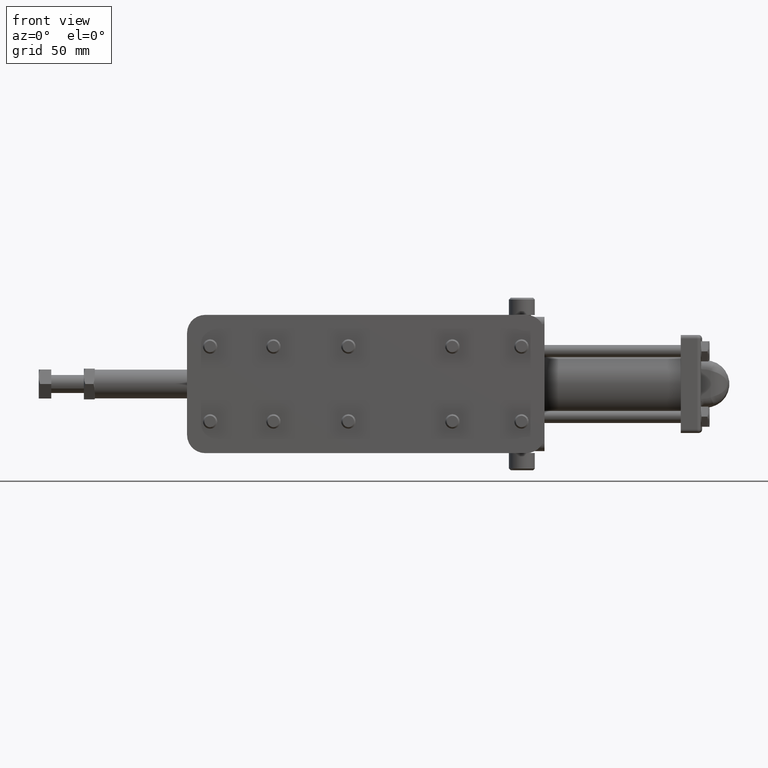
[diagram: clean part render]
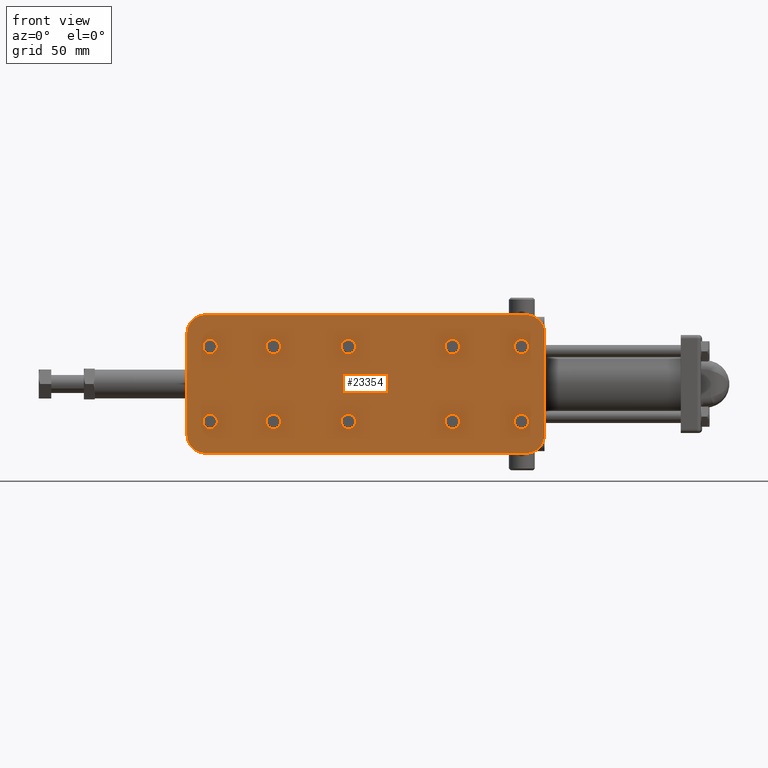
[diagram: same view with one face highlighted and labeled with its STEP entity id]
A machine part, front view. The second image highlights one B-rep face of the part: STEP entity #23354.
In plain terms, the highlighted planar face has unit normal (0, 1, 0).
Its self-contained STEP definition (entity closure, byte-faithful):
#307 = DIRECTION ( 'NONE',  ( 0.0000000000000000000, 1.000000000000000000, 0.0000000000000000000 ) ) ;
#372 = DIRECTION ( 'NONE',  ( -1.000000000000000000, -0.0000000000000000000, 3.920279041755499000E-017 ) ) ;
#522 = VERTEX_POINT ( 'NONE', #10785 ) ;
#663 = AXIS2_PLACEMENT_3D ( 'NONE', #22960, #6976, #25650 ) ;
#720 = AXIS2_PLACEMENT_3D ( 'NONE', #15614, #34259, #18285 ) ;
#798 = EDGE_CURVE ( 'NONE', #27579, #27039, #34012, .T. ) ;
#835 = FACE_BOUND ( 'NONE', #27676, .T. ) ;
#952 = CARTESIAN_POINT ( 'NONE',  ( 146.1999999999999900, -6.000000000000001800, -20.65000000000000600 ) ) ;
#1257 = CARTESIAN_POINT ( 'NONE',  ( 149.6370383212694700, -6.000000000000001800, -18.66562499999999900 ) ) ;
#1595 = VERTEX_POINT ( 'NONE', #26160 ) ;
#1651 = DIRECTION ( 'NONE',  ( 0.0000000000000000000, 0.0000000000000000000, 1.000000000000000000 ) ) ;
#1772 = DIRECTION ( 'NONE',  ( 0.0000000000000000000, 1.000000000000000000, 0.0000000000000000000 ) ) ;
#1879 = DIRECTION ( 'NONE',  ( 0.0000000000000000000, 0.0000000000000000000, 1.000000000000000000 ) ) ;
#1894 = ORIENTED_EDGE ( 'NONE', *, *, #26446, .F. ) ;
#1958 = VECTOR ( 'NONE', #28839, 1000.000000000000000 ) ;
#2018 = DIRECTION ( 'NONE',  ( 0.0000000000000000000, 0.0000000000000000000, 1.000000000000000000 ) ) ;
#2072 = AXIS2_PLACEMENT_3D ( 'NONE', #11125, #29729, #13786 ) ;
#2298 = AXIS2_PLACEMENT_3D ( 'NONE', #2689, #21402, #5424 ) ;
#2500 = CIRCLE ( 'NONE', #720, 9.999999999999994700 ) ;
#2689 = CARTESIAN_POINT ( 'NONE',  ( 47.60000000000000900, -6.000000000000001800, 20.65000000000000900 ) ) ;
#2782 = LINE ( 'NONE', #10321, #1958 ) ;
#2963 = CIRCLE ( 'NONE', #20628, 3.968750000000000000 ) ;
#3143 = CARTESIAN_POINT ( 'NONE',  ( 146.1999999999999900, -6.000000000000001800, -20.65000000000000600 ) ) ;
#3556 = CARTESIAN_POINT ( 'NONE',  ( 12.70000000000001000, -6.000000000000001800, 20.65000000000001300 ) ) ;
#3663 = DIRECTION ( 'NONE',  ( 0.0000000000000000000, 0.0000000000000000000, 1.000000000000000000 ) ) ;
#4216 = CARTESIAN_POINT ( 'NONE',  ( 51.03703832126949900, -6.000000000000001800, 22.63437500000001600 ) ) ;
#4466 = VERTEX_POINT ( 'NONE', #23744 ) ;
#4812 = AXIS2_PLACEMENT_3D ( 'NONE', #34002, #18027, #2018 ) ;
#4892 = CARTESIAN_POINT ( 'NONE',  ( 0.0000000000000000000, -6.000000000000000000, -28.09999999999991600 ) ) ;
#5345 = EDGE_CURVE ( 'NONE', #26636, #23755, #25811, .T. ) ;
#5424 = DIRECTION ( 'NONE',  ( 0.0000000000000000000, 0.0000000000000000000, 1.000000000000000000 ) ) ;
#5457 = EDGE_CURVE ( 'NONE', #31526, #9575, #2782, .T. ) ;
#5472 = AXIS2_PLACEMENT_3D ( 'NONE', #8826, #27490, #11521 ) ;
#5859 = DIRECTION ( 'NONE',  ( 0.0000000000000000000, 0.0000000000000000000, 1.000000000000000000 ) ) ;
#5961 = ORIENTED_EDGE ( 'NONE', *, *, #15129, .F. ) ;
#6068 = VERTEX_POINT ( 'NONE', #21461 ) ;
#6268 = DIRECTION ( 'NONE',  ( 0.0000000000000000000, 0.0000000000000000000, 1.000000000000000000 ) ) ;
#6368 = EDGE_CURVE ( 'NONE', #16216, #28874, #25711, .T. ) ;
#6394 = CARTESIAN_POINT ( 'NONE',  ( 187.7370383212694700, -6.000000000000001800, 22.63437499999999100 ) ) ;
#6976 = DIRECTION ( 'NONE',  ( -0.0000000000000000000, -1.000000000000000000, -0.0000000000000000000 ) ) ;
#7125 = FACE_BOUND ( 'NONE', #26887, .T. ) ;
#7155 = CARTESIAN_POINT ( 'NONE',  ( 47.59999999999998700, -6.000000000000001800, -20.64999999999998400 ) ) ;
#7763 = ORIENTED_EDGE ( 'NONE', *, *, #23921, .T. ) ;
#7831 = CARTESIAN_POINT ( 'NONE',  ( 12.70000000000001000, -6.000000000000001800, 20.65000000000001300 ) ) ;
#7961 = FACE_BOUND ( 'NONE', #26766, .T. ) ;
#7981 = VERTEX_POINT ( 'NONE', #12182 ) ;
#8373 = EDGE_CURVE ( 'NONE', #1595, #28280, #28035, .T. ) ;
#8428 = CARTESIAN_POINT ( 'NONE',  ( 197.0000000000000000, -6.000000000000000000, -28.09999999999992300 ) ) ;
#8826 = CARTESIAN_POINT ( 'NONE',  ( 12.69999999999998900, -6.000000000000001800, -20.64999999999998400 ) ) ;
#8839 = CARTESIAN_POINT ( 'NONE',  ( 51.03703832126947800, -6.000000000000001800, -18.66562499999997700 ) ) ;
#9127 = ORIENTED_EDGE ( 'NONE', *, *, #21570, .T. ) ;
#9186 = ORIENTED_EDGE ( 'NONE', *, *, #22785, .T. ) ;
#9202 = CARTESIAN_POINT ( 'NONE',  ( 197.0000000000000000, -6.000000000000000000, -28.09999999999992300 ) ) ;
#9368 = CIRCLE ( 'NONE', #663, 3.968750000000000000 ) ;
#9575 = VERTEX_POINT ( 'NONE', #14522 ) ;
#9618 = EDGE_LOOP ( 'NONE', ( #9186, #25192 ) ) ;
#9835 = DIRECTION ( 'NONE',  ( 0.0000000000000000000, 0.0000000000000000000, 1.000000000000000000 ) ) ;
#9899 = EDGE_CURVE ( 'NONE', #7981, #19255, #25472, .T. ) ;
#9901 = EDGE_LOOP ( 'NONE', ( #27706, #15535 ) ) ;
#10074 = EDGE_CURVE ( 'NONE', #17315, #15804, #10830, .T. ) ;
#10321 = CARTESIAN_POINT ( 'NONE',  ( 0.0000000000000000000, -6.000000000000000000, -28.09999999999991600 ) ) ;
#10487 = DIRECTION ( 'NONE',  ( 0.0000000000000000000, 1.000000000000000000, 0.0000000000000000000 ) ) ;
#10525 = DIRECTION ( 'NONE',  ( 0.0000000000000000000, 0.0000000000000000000, 1.000000000000000000 ) ) ;
#10726 = CARTESIAN_POINT ( 'NONE',  ( 187.0000000000000000, -6.000000000000000000, -28.09999999999999400 ) ) ;
#10785 = CARTESIAN_POINT ( 'NONE',  ( 9.262961678730523100, -6.000000000000001800, 18.66562500000000600 ) ) ;
#10830 = LINE ( 'NONE', #11908, #25042 ) ;
#10882 = DIRECTION ( 'NONE',  ( 0.0000000000000000000, 1.000000000000000000, 0.0000000000000000000 ) ) ;
#11125 = CARTESIAN_POINT ( 'NONE',  ( 12.69999999999998900, -6.000000000000001800, -20.64999999999998400 ) ) ;
#11187 = CIRCLE ( 'NONE', #5472, 3.968750000000000000 ) ;
#11521 = DIRECTION ( 'NONE',  ( 0.0000000000000000000, 0.0000000000000000000, 1.000000000000000000 ) ) ;
#11567 = AXIS2_PLACEMENT_3D ( 'NONE', #33866, #17894, #1879 ) ;
#11635 = ORIENTED_EDGE ( 'NONE', *, *, #17789, .T. ) ;
#11785 = DIRECTION ( 'NONE',  ( -0.0000000000000000000, -1.000000000000000000, -0.0000000000000000000 ) ) ;
#11908 = CARTESIAN_POINT ( 'NONE',  ( 10.00000000000009200, -6.000000000000000000, 38.10000000000003000 ) ) ;
#12007 = CARTESIAN_POINT ( 'NONE',  ( 47.60000000000000900, -6.000000000000001800, 20.65000000000000900 ) ) ;
#12136 = CARTESIAN_POINT ( 'NONE',  ( 92.33703832126947500, -6.000000000000001800, -18.66562499999998400 ) ) ;
#12182 = CARTESIAN_POINT ( 'NONE',  ( 9.262961678730501800, -6.000000000000001800, -22.63437499999999100 ) ) ;
#12246 = AXIS2_PLACEMENT_3D ( 'NONE', #10726, #29354, #13416 ) ;
#12303 = CARTESIAN_POINT ( 'NONE',  ( 88.89999999999999100, -6.000000000000001800, -20.64999999999999100 ) ) ;
#12488 = EDGE_CURVE ( 'NONE', #32673, #6068, #32711, .T. ) ;
#12700 = AXIS2_PLACEMENT_3D ( 'NONE', #26846, #10882, #29503 ) ;
#12871 = ORIENTED_EDGE ( 'NONE', *, *, #6368, .F. ) ;
#13108 = CARTESIAN_POINT ( 'NONE',  ( 180.8629616787305000, -6.000000000000001800, 18.66562499999997700 ) ) ;
#13416 = DIRECTION ( 'NONE',  ( 0.0000000000000000000, 0.0000000000000000000, -1.000000000000000000 ) ) ;
#13786 = DIRECTION ( 'NONE',  ( 0.0000000000000000000, 0.0000000000000000000, 1.000000000000000000 ) ) ;
#14227 = FACE_BOUND ( 'NONE', #32906, .T. ) ;
#14384 = EDGE_CURVE ( 'NONE', #522, #34156, #23610, .T. ) ;
#14488 = CARTESIAN_POINT ( 'NONE',  ( 88.90000000000000600, -6.000000000000001800, 20.65000000000000600 ) ) ;
#14498 = CARTESIAN_POINT ( 'NONE',  ( 146.1999999999999900, -6.000000000000001800, 20.64999999999998800 ) ) ;
#14522 = CARTESIAN_POINT ( 'NONE',  ( 2.775557561562891400E-014, -6.000000000000000000, 28.09999999999995900 ) ) ;
#14593 = EDGE_CURVE ( 'NONE', #21513, #31326, #17725, .T. ) ;
#14684 = DIRECTION ( 'NONE',  ( 0.0000000000000000000, 0.0000000000000000000, 1.000000000000000000 ) ) ;
#14693 = CARTESIAN_POINT ( 'NONE',  ( 146.1999999999999900, -6.000000000000001800, 20.64999999999998800 ) ) ;
#14766 = AXIS2_PLACEMENT_3D ( 'NONE', #16335, #307, #18997 ) ;
#14772 = ORIENTED_EDGE ( 'NONE', *, *, #28877, .F. ) ;
#14856 = VERTEX_POINT ( 'NONE', #23960 ) ;
#14921 = CIRCLE ( 'NONE', #22707, 3.968750000000000000 ) ;
#14927 = ORIENTED_EDGE ( 'NONE', *, *, #14593, .T. ) ;
#15012 = AXIS2_PLACEMENT_3D ( 'NONE', #14498, #33137, #17164 ) ;
#15014 = DIRECTION ( 'NONE',  ( 0.0000000000000000000, 0.0000000000000000000, 1.000000000000000000 ) ) ;
#15129 = EDGE_CURVE ( 'NONE', #14856, #4466, #24366, .T. ) ;
#15150 = ORIENTED_EDGE ( 'NONE', *, *, #23119, .F. ) ;
#15365 = CARTESIAN_POINT ( 'NONE',  ( 44.16296167873050400, -6.000000000000001800, -22.63437499999999100 ) ) ;
#15535 = ORIENTED_EDGE ( 'NONE', *, *, #29170, .T. ) ;
#15567 = CARTESIAN_POINT ( 'NONE',  ( 187.0000000000000000, -6.000000000000000000, 28.10000000000001600 ) ) ;
#15614 = CARTESIAN_POINT ( 'NONE',  ( 10.00000000000002300, -6.000000000000000000, 28.10000000000002600 ) ) ;
#15804 = VERTEX_POINT ( 'NONE', #29813 ) ;
#16035 = CARTESIAN_POINT ( 'NONE',  ( 16.13703832126947500, -6.000000000000001800, -18.66562499999997700 ) ) ;
#16096 = AXIS2_PLACEMENT_3D ( 'NONE', #3143, #21834, #5859 ) ;
#16216 = VERTEX_POINT ( 'NONE', #29207 ) ;
#16335 = CARTESIAN_POINT ( 'NONE',  ( 88.90000000000000600, -6.000000000000001800, 20.65000000000000600 ) ) ;
#16518 = CIRCLE ( 'NONE', #12700, 10.00000000000000200 ) ;
#16758 = AXIS2_PLACEMENT_3D ( 'NONE', #33632, #17658, #1651 ) ;
#16831 = EDGE_LOOP ( 'NONE', ( #11635, #14927 ) ) ;
#16848 = AXIS2_PLACEMENT_3D ( 'NONE', #26462, #10487, #29110 ) ;
#16866 = EDGE_CURVE ( 'NONE', #27039, #31526, #16518, .T. ) ;
#17141 = CARTESIAN_POINT ( 'NONE',  ( 186.9999999999999400, -6.000000000000000000, -38.09999999999999400 ) ) ;
#17155 = DIRECTION ( 'NONE',  ( 0.0000000000000000000, 0.0000000000000000000, 1.000000000000000000 ) ) ;
#17164 = DIRECTION ( 'NONE',  ( 0.0000000000000000000, 0.0000000000000000000, 1.000000000000000000 ) ) ;
#17315 = VERTEX_POINT ( 'NONE', #26706 ) ;
#17367 = DIRECTION ( 'NONE',  ( 0.0000000000000000000, 0.0000000000000000000, 1.000000000000000000 ) ) ;
#17658 = DIRECTION ( 'NONE',  ( -0.0000000000000000000, -1.000000000000000000, -0.0000000000000000000 ) ) ;
#17725 = CIRCLE ( 'NONE', #25943, 3.968750000000000000 ) ;
#17782 = CARTESIAN_POINT ( 'NONE',  ( 88.89999999999999100, -6.000000000000001800, -20.64999999999999100 ) ) ;
#17789 = EDGE_CURVE ( 'NONE', #31326, #21513, #33101, .T. ) ;
#17894 = DIRECTION ( 'NONE',  ( 0.0000000000000000000, 1.000000000000000000, 0.0000000000000000000 ) ) ;
#18027 = DIRECTION ( 'NONE',  ( -0.0000000000000000000, -1.000000000000000000, -0.0000000000000000000 ) ) ;
#18240 = DIRECTION ( 'NONE',  ( 0.0000000000000000000, 0.0000000000000000000, 1.000000000000000000 ) ) ;
#18285 = DIRECTION ( 'NONE',  ( 0.0000000000000000000, 0.0000000000000000000, 1.000000000000000000 ) ) ;
#18822 = CIRCLE ( 'NONE', #32485, 3.968750000000000000 ) ;
#18997 = DIRECTION ( 'NONE',  ( 0.0000000000000000000, 0.0000000000000000000, 1.000000000000000000 ) ) ;
#19255 = VERTEX_POINT ( 'NONE', #16035 ) ;
#19646 = DIRECTION ( 'NONE',  ( -0.0000000000000000000, -1.000000000000000000, -0.0000000000000000000 ) ) ;
#19942 = AXIS2_PLACEMENT_3D ( 'NONE', #14488, #33125, #17155 ) ;
#19994 = VERTEX_POINT ( 'NONE', #30687 ) ;
#20191 = EDGE_LOOP ( 'NONE', ( #24025, #25475 ) ) ;
#20470 = DIRECTION ( 'NONE',  ( 0.0000000000000000000, 0.0000000000000000000, 1.000000000000000000 ) ) ;
#20485 = FACE_OUTER_BOUND ( 'NONE', #26177, .T. ) ;
#20596 = ORIENTED_EDGE ( 'NONE', *, *, #12488, .F. ) ;
#20628 = AXIS2_PLACEMENT_3D ( 'NONE', #7831, #26506, #10525 ) ;
#20911 = CIRCLE ( 'NONE', #16758, 3.968750000000000000 ) ;
#20932 = EDGE_CURVE ( 'NONE', #15804, #16216, #34102, .T. ) ;
#21144 = CARTESIAN_POINT ( 'NONE',  ( 44.16296167873052500, -6.000000000000001800, 18.66562500000000200 ) ) ;
#21328 = FACE_BOUND ( 'NONE', #16831, .T. ) ;
#21402 = DIRECTION ( 'NONE',  ( 0.0000000000000000000, 1.000000000000000000, 0.0000000000000000000 ) ) ;
#21461 = CARTESIAN_POINT ( 'NONE',  ( 142.7629616787305100, -6.000000000000001800, -22.63437500000001300 ) ) ;
#21513 = VERTEX_POINT ( 'NONE', #30184 ) ;
#21570 = EDGE_CURVE ( 'NONE', #25045, #25214, #24403, .T. ) ;
#21633 = EDGE_CURVE ( 'NONE', #32438, #33439, #9368, .T. ) ;
#21834 = DIRECTION ( 'NONE',  ( -0.0000000000000000000, -1.000000000000000000, -0.0000000000000000000 ) ) ;
#22133 = AXIS2_PLACEMENT_3D ( 'NONE', #7155, #25847, #9835 ) ;
#22170 = FACE_BOUND ( 'NONE', #9901, .T. ) ;
#22242 = DIRECTION ( 'NONE',  ( 0.0000000000000000000, 1.000000000000000000, 0.0000000000000000000 ) ) ;
#22707 = AXIS2_PLACEMENT_3D ( 'NONE', #27737, #11785, #30428 ) ;
#22785 = EDGE_CURVE ( 'NONE', #34156, #522, #2963, .T. ) ;
#22960 = CARTESIAN_POINT ( 'NONE',  ( 184.2999999999999800, -6.000000000000001800, 20.64999999999998400 ) ) ;
#23119 = EDGE_CURVE ( 'NONE', #4466, #14856, #18822, .T. ) ;
#23248 = ORIENTED_EDGE ( 'NONE', *, *, #20932, .F. ) ;
#23329 = EDGE_CURVE ( 'NONE', #9575, #17315, #2500, .T. ) ;
#23354 = ADVANCED_FACE ( 'NONE', ( #22170, #7961, #29235, #835, #28398, #21328, #14227, #7125, #34672, #27583, #20485 ), #31688, .F. ) ;
#23610 = CIRCLE ( 'NONE', #28363, 3.968750000000000000 ) ;
#23611 = CARTESIAN_POINT ( 'NONE',  ( 16.13703832126949700, -6.000000000000001800, 22.63437500000002000 ) ) ;
#23744 = CARTESIAN_POINT ( 'NONE',  ( 142.7629616787305100, -6.000000000000001800, 18.66562499999998100 ) ) ;
#23755 = VERTEX_POINT ( 'NONE', #15365 ) ;
#23921 = EDGE_CURVE ( 'NONE', #25214, #25045, #26687, .T. ) ;
#23960 = CARTESIAN_POINT ( 'NONE',  ( 149.6370383212694700, -6.000000000000001800, 22.63437499999999500 ) ) ;
#24025 = ORIENTED_EDGE ( 'NONE', *, *, #25500, .F. ) ;
#24205 = CIRCLE ( 'NONE', #16096, 3.968750000000000000 ) ;
#24366 = CIRCLE ( 'NONE', #15012, 3.968750000000000000 ) ;
#24403 = CIRCLE ( 'NONE', #28175, 3.968750000000000000 ) ;
#24508 = ORIENTED_EDGE ( 'NONE', *, *, #5457, .F. ) ;
#24523 = ORIENTED_EDGE ( 'NONE', *, *, #5345, .T. ) ;
#24863 = EDGE_LOOP ( 'NONE', ( #24523, #34481 ) ) ;
#25042 = VECTOR ( 'NONE', #25230, 1000.000000000000000 ) ;
#25045 = VERTEX_POINT ( 'NONE', #4216 ) ;
#25192 = ORIENTED_EDGE ( 'NONE', *, *, #14384, .T. ) ;
#25214 = VERTEX_POINT ( 'NONE', #21144 ) ;
#25230 = DIRECTION ( 'NONE',  ( 1.000000000000000000, 0.0000000000000000000, -1.176083712526649900E-016 ) ) ;
#25472 = CIRCLE ( 'NONE', #2072, 3.968750000000000000 ) ;
#25475 = ORIENTED_EDGE ( 'NONE', *, *, #21633, .F. ) ;
#25500 = EDGE_CURVE ( 'NONE', #33439, #32438, #14921, .T. ) ;
#25650 = DIRECTION ( 'NONE',  ( 0.0000000000000000000, 0.0000000000000000000, 1.000000000000000000 ) ) ;
#25711 = LINE ( 'NONE', #9202, #32781 ) ;
#25811 = CIRCLE ( 'NONE', #11567, 3.968750000000000000 ) ;
#25847 = DIRECTION ( 'NONE',  ( 0.0000000000000000000, 1.000000000000000000, 0.0000000000000000000 ) ) ;
#25943 = AXIS2_PLACEMENT_3D ( 'NONE', #12303, #30951, #15014 ) ;
#26160 = CARTESIAN_POINT ( 'NONE',  ( 92.33703832126948900, -6.000000000000001800, 22.63437500000001300 ) ) ;
#26177 = EDGE_LOOP ( 'NONE', ( #31487, #26591, #1894, #12871, #23248, #34247, #31019, #24508 ) ) ;
#26446 = EDGE_CURVE ( 'NONE', #28874, #27579, #33149, .T. ) ;
#26456 = CARTESIAN_POINT ( 'NONE',  ( 85.46296167873052200, -6.000000000000001800, 18.66562499999999900 ) ) ;
#26462 = CARTESIAN_POINT ( 'NONE',  ( 10.00000000000000900, -6.000000000000000000, -28.09999999999998700 ) ) ;
#26506 = DIRECTION ( 'NONE',  ( 0.0000000000000000000, 1.000000000000000000, 0.0000000000000000000 ) ) ;
#26591 = ORIENTED_EDGE ( 'NONE', *, *, #798, .F. ) ;
#26636 = VERTEX_POINT ( 'NONE', #8839 ) ;
#26687 = CIRCLE ( 'NONE', #2298, 3.968750000000000000 ) ;
#26706 = CARTESIAN_POINT ( 'NONE',  ( 10.00000000000009200, -6.000000000000000000, 38.10000000000003000 ) ) ;
#26766 = EDGE_LOOP ( 'NONE', ( #9127, #7763 ) ) ;
#26846 = CARTESIAN_POINT ( 'NONE',  ( 10.00000000000000900, -6.000000000000000000, -28.09999999999998700 ) ) ;
#26887 = EDGE_LOOP ( 'NONE', ( #27557, #30800 ) ) ;
#27039 = VERTEX_POINT ( 'NONE', #27464 ) ;
#27464 = CARTESIAN_POINT ( 'NONE',  ( 10.00000000000006400, -6.000000000000000000, -38.09999999999998700 ) ) ;
#27490 = DIRECTION ( 'NONE',  ( 0.0000000000000000000, 1.000000000000000000, 0.0000000000000000000 ) ) ;
#27557 = ORIENTED_EDGE ( 'NONE', *, *, #28631, .F. ) ;
#27579 = VERTEX_POINT ( 'NONE', #17141 ) ;
#27583 = FACE_BOUND ( 'NONE', #33807, .T. ) ;
#27676 = EDGE_LOOP ( 'NONE', ( #28073, #30259 ) ) ;
#27706 = ORIENTED_EDGE ( 'NONE', *, *, #8373, .T. ) ;
#27737 = CARTESIAN_POINT ( 'NONE',  ( 184.2999999999999800, -6.000000000000001800, 20.64999999999998400 ) ) ;
#27964 = DIRECTION ( 'NONE',  ( -0.0000000000000000000, -0.0000000000000000000, -1.000000000000000000 ) ) ;
#27976 = CIRCLE ( 'NONE', #22133, 3.968750000000000000 ) ;
#28035 = CIRCLE ( 'NONE', #19942, 3.968750000000000000 ) ;
#28073 = ORIENTED_EDGE ( 'NONE', *, *, #31723, .T. ) ;
#28175 = AXIS2_PLACEMENT_3D ( 'NONE', #12007, #30648, #14684 ) ;
#28280 = VERTEX_POINT ( 'NONE', #26456 ) ;
#28363 = AXIS2_PLACEMENT_3D ( 'NONE', #3556, #22242, #6268 ) ;
#28398 = FACE_BOUND ( 'NONE', #24863, .T. ) ;
#28631 = EDGE_CURVE ( 'NONE', #30624, #19994, #20911, .T. ) ;
#28665 = EDGE_CURVE ( 'NONE', #23755, #26636, #27976, .T. ) ;
#28839 = DIRECTION ( 'NONE',  ( 4.938714522353910200E-016, 0.0000000000000000000, 1.000000000000000000 ) ) ;
#28874 = VERTEX_POINT ( 'NONE', #8428 ) ;
#28877 = EDGE_CURVE ( 'NONE', #6068, #32673, #24205, .T. ) ;
#29110 = DIRECTION ( 'NONE',  ( 0.0000000000000000000, -0.0000000000000000000, 1.000000000000000000 ) ) ;
#29170 = EDGE_CURVE ( 'NONE', #28280, #1595, #30419, .T. ) ;
#29207 = CARTESIAN_POINT ( 'NONE',  ( 197.0000000000000000, -6.000000000000000000, 28.09999999999993700 ) ) ;
#29235 = FACE_BOUND ( 'NONE', #9618, .T. ) ;
#29354 = DIRECTION ( 'NONE',  ( 0.0000000000000000000, 1.000000000000000000, -0.0000000000000000000 ) ) ;
#29503 = DIRECTION ( 'NONE',  ( 0.0000000000000000000, 0.0000000000000000000, 1.000000000000000000 ) ) ;
#29729 = DIRECTION ( 'NONE',  ( 0.0000000000000000000, 1.000000000000000000, 0.0000000000000000000 ) ) ;
#29813 = CARTESIAN_POINT ( 'NONE',  ( 186.9999999999999400, -6.000000000000000000, 38.10000000000000900 ) ) ;
#30184 = CARTESIAN_POINT ( 'NONE',  ( 85.46296167873050800, -6.000000000000001800, -22.63437499999999900 ) ) ;
#30259 = ORIENTED_EDGE ( 'NONE', *, *, #9899, .T. ) ;
#30419 = CIRCLE ( 'NONE', #14766, 3.968750000000000000 ) ;
#30428 = DIRECTION ( 'NONE',  ( 0.0000000000000000000, 0.0000000000000000000, 1.000000000000000000 ) ) ;
#30624 = VERTEX_POINT ( 'NONE', #33268 ) ;
#30648 = DIRECTION ( 'NONE',  ( 0.0000000000000000000, 1.000000000000000000, 0.0000000000000000000 ) ) ;
#30687 = CARTESIAN_POINT ( 'NONE',  ( 180.8629616787305000, -6.000000000000001800, -22.63437500000002000 ) ) ;
#30800 = ORIENTED_EDGE ( 'NONE', *, *, #31854, .F. ) ;
#30951 = DIRECTION ( 'NONE',  ( 0.0000000000000000000, 1.000000000000000000, 0.0000000000000000000 ) ) ;
#30968 = AXIS2_PLACEMENT_3D ( 'NONE', #952, #19646, #3663 ) ;
#31019 = ORIENTED_EDGE ( 'NONE', *, *, #23329, .F. ) ;
#31326 = VERTEX_POINT ( 'NONE', #12136 ) ;
#31376 = AXIS2_PLACEMENT_3D ( 'NONE', #15567, #34210, #18240 ) ;
#31467 = AXIS2_PLACEMENT_3D ( 'NONE', #17782, #1772, #20470 ) ;
#31487 = ORIENTED_EDGE ( 'NONE', *, *, #16866, .F. ) ;
#31526 = VERTEX_POINT ( 'NONE', #4892 ) ;
#31688 = PLANE ( 'NONE',  #16848 ) ;
#31723 = EDGE_CURVE ( 'NONE', #19255, #7981, #11187, .T. ) ;
#31854 = EDGE_CURVE ( 'NONE', #19994, #30624, #31996, .T. ) ;
#31996 = CIRCLE ( 'NONE', #4812, 3.968750000000000000 ) ;
#32438 = VERTEX_POINT ( 'NONE', #13108 ) ;
#32485 = AXIS2_PLACEMENT_3D ( 'NONE', #14693, #33331, #17367 ) ;
#32673 = VERTEX_POINT ( 'NONE', #1257 ) ;
#32711 = CIRCLE ( 'NONE', #30968, 3.968750000000000000 ) ;
#32781 = VECTOR ( 'NONE', #27964, 1000.000000000000000 ) ;
#32906 = EDGE_LOOP ( 'NONE', ( #20596, #14772 ) ) ;
#33101 = CIRCLE ( 'NONE', #31467, 3.968750000000000000 ) ;
#33125 = DIRECTION ( 'NONE',  ( 0.0000000000000000000, 1.000000000000000000, 0.0000000000000000000 ) ) ;
#33137 = DIRECTION ( 'NONE',  ( -0.0000000000000000000, -1.000000000000000000, -0.0000000000000000000 ) ) ;
#33149 = CIRCLE ( 'NONE', #12246, 9.999999999999994700 ) ;
#33167 = VECTOR ( 'NONE', #372, 1000.000000000000000 ) ;
#33268 = CARTESIAN_POINT ( 'NONE',  ( 187.7370383212694700, -6.000000000000001800, -18.66562500000000600 ) ) ;
#33331 = DIRECTION ( 'NONE',  ( -0.0000000000000000000, -1.000000000000000000, -0.0000000000000000000 ) ) ;
#33439 = VERTEX_POINT ( 'NONE', #6394 ) ;
#33632 = CARTESIAN_POINT ( 'NONE',  ( 184.2999999999999800, -6.000000000000001800, -20.65000000000001300 ) ) ;
#33718 = CARTESIAN_POINT ( 'NONE',  ( 10.00000000000006400, -6.000000000000000000, -38.09999999999998700 ) ) ;
#33807 = EDGE_LOOP ( 'NONE', ( #5961, #15150 ) ) ;
#33866 = CARTESIAN_POINT ( 'NONE',  ( 47.59999999999998700, -6.000000000000001800, -20.64999999999998400 ) ) ;
#34002 = CARTESIAN_POINT ( 'NONE',  ( 184.2999999999999800, -6.000000000000001800, -20.65000000000001300 ) ) ;
#34012 = LINE ( 'NONE', #33718, #33167 ) ;
#34102 = CIRCLE ( 'NONE', #31376, 9.999999999999994700 ) ;
#34156 = VERTEX_POINT ( 'NONE', #23611 ) ;
#34210 = DIRECTION ( 'NONE',  ( 0.0000000000000000000, 1.000000000000000000, 0.0000000000000000000 ) ) ;
#34247 = ORIENTED_EDGE ( 'NONE', *, *, #10074, .F. ) ;
#34259 = DIRECTION ( 'NONE',  ( 0.0000000000000000000, 1.000000000000000000, 0.0000000000000000000 ) ) ;
#34481 = ORIENTED_EDGE ( 'NONE', *, *, #28665, .T. ) ;
#34672 = FACE_BOUND ( 'NONE', #20191, .T. ) ;